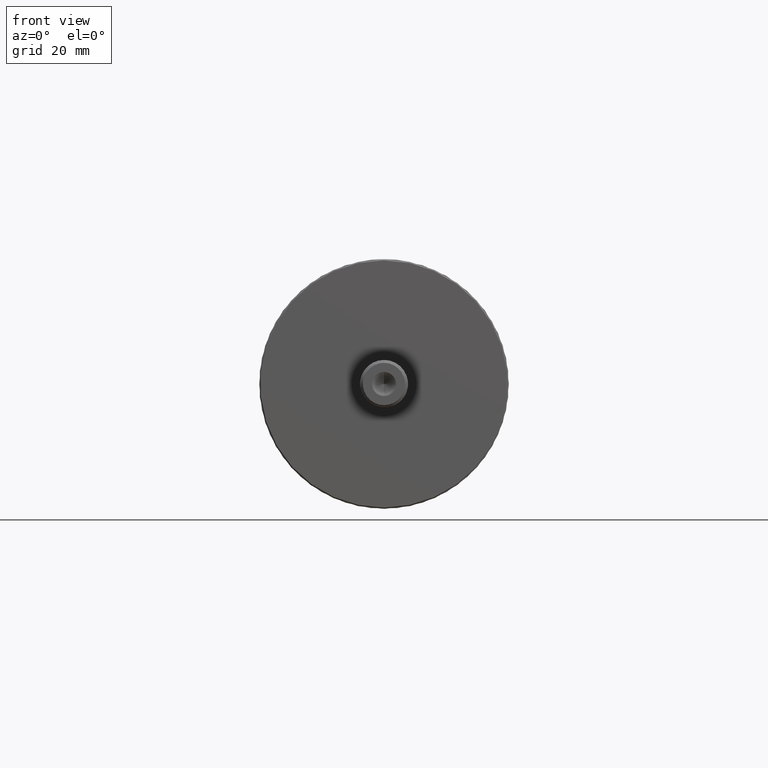
[diagram: clean part render]
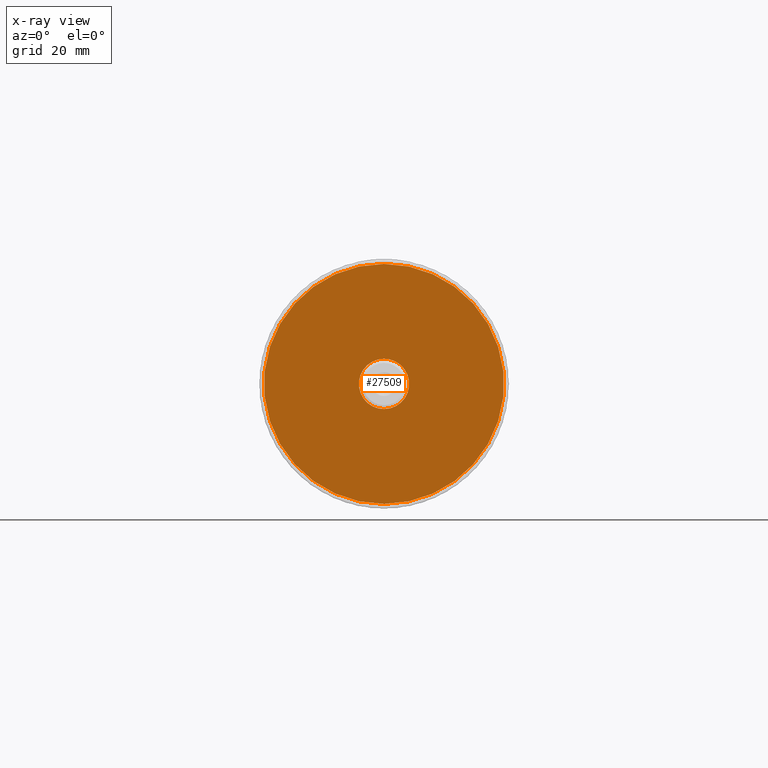
[diagram: x-ray — body ghosted, one internal face saturated and labeled with its STEP entity id]
A machine part, front view, then the same camera in x-ray: the body is ghosted and one INTERNAL B-rep face — a face not visible from any outside direction — is saturated and labeled: STEP entity #27509.
In plain terms, the highlighted planar face has unit normal (0, 1, 0).
Its self-contained STEP definition (entity closure, byte-faithful):
#187 = CARTESIAN_POINT ( 'NONE',  ( 0.000000000000000000, 0.000000000000000000, 0.000000000000000000 ) ) ;
#870 = DIRECTION ( 'NONE',  ( 0.000000000000000000, 0.000000000000000000, 1.000000000000000000 ) ) ;
#1437 = CIRCLE ( 'NONE', #18976, 5.250000000000000000 ) ;
#1836 = ORIENTED_EDGE ( 'NONE', *, *, #19075, .T. ) ;
#2006 = EDGE_LOOP ( 'NONE', ( #1836, #20114 ) ) ;
#2461 = DIRECTION ( 'NONE',  ( 0.000000000000000000, 0.000000000000000000, 1.000000000000000000 ) ) ;
#3158 = CARTESIAN_POINT ( 'NONE',  ( 0.000000000000000000, 0.000000000000000000, 0.000000000000000000 ) ) ;
#3198 = EDGE_CURVE ( 'NONE', #16678, #29011, #27266, .T. ) ;
#5006 = DIRECTION ( 'NONE',  ( 0.000000000000000000, 0.000000000000000000, 1.000000000000000000 ) ) ;
#5663 = EDGE_CURVE ( 'NONE', #15371, #16531, #8062, .T. ) ;
#7066 = EDGE_LOOP ( 'NONE', ( #14260, #31121 ) ) ;
#7310 = PLANE ( 'NONE',  #10155 ) ;
#7349 = EDGE_CURVE ( 'NONE', #29011, #16678, #27521, .T. ) ;
#8062 = CIRCLE ( 'NONE', #27997, 5.250000000000000000 ) ;
#8369 = AXIS2_PLACEMENT_3D ( 'NONE', #13759, #29067, #24034 ) ;
#9802 = DIRECTION ( 'NONE',  ( 0.000000000000000000, 1.000000000000000000, 0.000000000000000000 ) ) ;
#10155 = AXIS2_PLACEMENT_3D ( 'NONE', #17670, #9802, #25656 ) ;
#13616 = DIRECTION ( 'NONE',  ( 0.000000000000000000, 1.000000000000000000, 0.000000000000000000 ) ) ;
#13759 = CARTESIAN_POINT ( 'NONE',  ( 0.000000000000000000, 0.000000000000000000, 0.000000000000000000 ) ) ;
#14260 = ORIENTED_EDGE ( 'NONE', *, *, #3198, .F. ) ;
#15371 = VERTEX_POINT ( 'NONE', #19429 ) ;
#16531 = VERTEX_POINT ( 'NONE', #29586 ) ;
#16678 = VERTEX_POINT ( 'NONE', #31283 ) ;
#17670 = CARTESIAN_POINT ( 'NONE',  ( 0.000000000000000000, 0.000000000000000000, 0.000000000000000000 ) ) ;
#18976 = AXIS2_PLACEMENT_3D ( 'NONE', #187, #20924, #2461 ) ;
#19075 = EDGE_CURVE ( 'NONE', #16531, #15371, #1437, .T. ) ;
#19429 = CARTESIAN_POINT ( 'NONE',  ( 6.429395695523604153E-16, 0.000000000000000000, 5.250000000000000000 ) ) ;
#19949 = FACE_OUTER_BOUND ( 'NONE', #7066, .T. ) ;
#20114 = ORIENTED_EDGE ( 'NONE', *, *, #5663, .T. ) ;
#20280 = DIRECTION ( 'NONE',  ( 0.000000000000000000, 1.000000000000000000, 0.000000000000000000 ) ) ;
#20924 = DIRECTION ( 'NONE',  ( 0.000000000000000000, 1.000000000000000000, 0.000000000000000000 ) ) ;
#24034 = DIRECTION ( 'NONE',  ( 0.000000000000000000, 0.000000000000000000, 1.000000000000000000 ) ) ;
#25656 = DIRECTION ( 'NONE',  ( 0.000000000000000000, -0.000000000000000000, 1.000000000000000000 ) ) ;
#26477 = FACE_BOUND ( 'NONE', #2006, .T. ) ;
#27266 = CIRCLE ( 'NONE', #8369, 25.00000000000000000 ) ;
#27509 = ADVANCED_FACE ( 'NONE', ( #19949, #26477 ), #7310, .F. ) ;
#27521 = CIRCLE ( 'NONE', #28927, 25.00000000000000000 ) ;
#27997 = AXIS2_PLACEMENT_3D ( 'NONE', #33288, #20280, #5006 ) ;
#28927 = AXIS2_PLACEMENT_3D ( 'NONE', #3158, #13616, #870 ) ;
#29011 = VERTEX_POINT ( 'NONE', #31810 ) ;
#29067 = DIRECTION ( 'NONE',  ( 0.000000000000000000, 1.000000000000000000, 0.000000000000000000 ) ) ;
#29586 = CARTESIAN_POINT ( 'NONE',  ( 0.000000000000000000, 0.000000000000000000, -5.250000000000000000 ) ) ;
#31121 = ORIENTED_EDGE ( 'NONE', *, *, #7349, .F. ) ;
#31283 = CARTESIAN_POINT ( 'NONE',  ( 0.000000000000000000, 0.000000000000000000, -25.00000000000000000 ) ) ;
#31810 = CARTESIAN_POINT ( 'NONE',  ( 3.061616997868383043E-15, 0.000000000000000000, 25.00000000000000000 ) ) ;
#33288 = CARTESIAN_POINT ( 'NONE',  ( 0.000000000000000000, 0.000000000000000000, 0.000000000000000000 ) ) ;